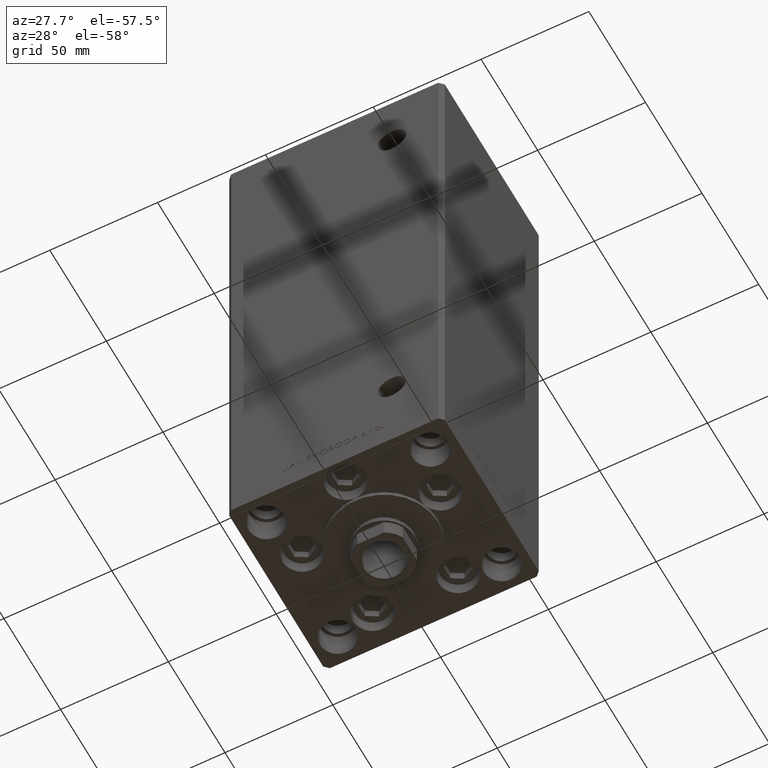
[diagram: clean part render]
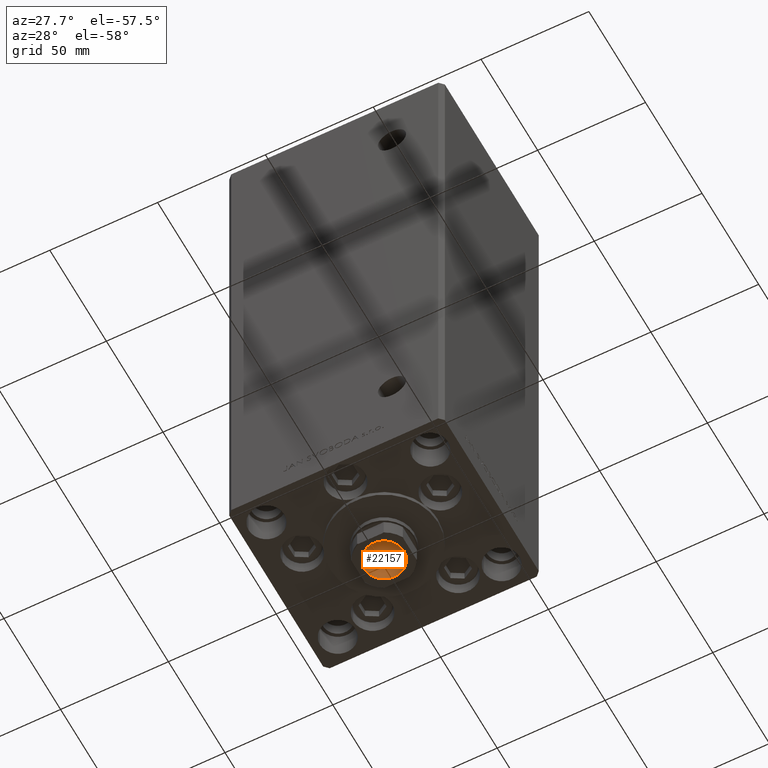
[diagram: same view with one face highlighted and labeled with its STEP entity id]
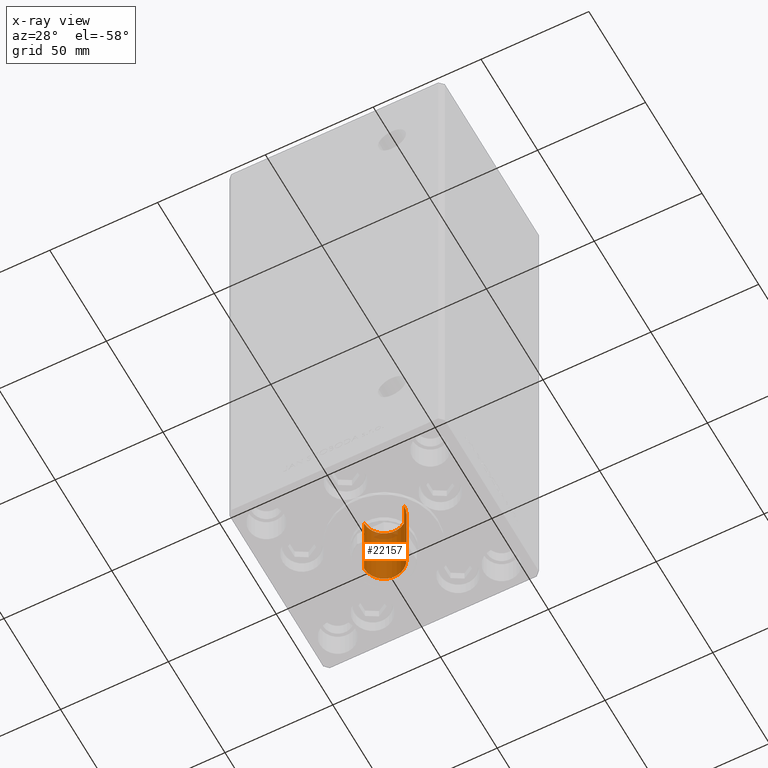
[diagram: x-ray of the same camera — body ghosted, the highlighted face saturated]
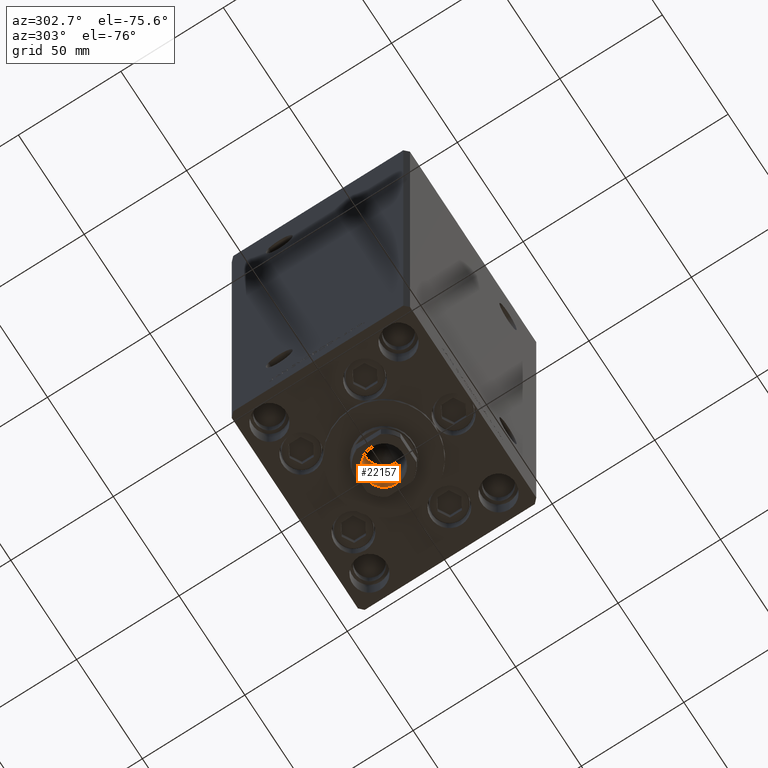
[diagram: same view with one face highlighted and labeled with its STEP entity id]
A machine part, auxiliary view. The second image highlights one B-rep face of the part: STEP entity #22157.
The next image is the same camera in x-ray: the body ghosted, the highlighted face saturated — about 7% of this face is hidden behind the body in this view.
A second angle (auxiliary view) of the same face is appended — the face is thin or edge-on in the first view.
In plain terms, the highlighted cylindrical surface (edge-blend (fillet) strip) has radius 9.25 mm, axis along (0, 0, -1).
Its self-contained STEP definition (entity closure, byte-faithful):
#507 = FACE_OUTER_BOUND ( 'NONE', #8332, .T. ) ;
#759 = CARTESIAN_POINT ( 'NONE',  ( 0.000000000000000000, 0.000000000000000000, 235.2500000000000284 ) ) ;
#4659 = CIRCLE ( 'NONE', #41884, 9.249999999999996447 ) ;
#5447 = ORIENTED_EDGE ( 'NONE', *, *, #41340, .F. ) ;
#5688 = VECTOR ( 'NONE', #36143, 1000.000000000000000 ) ;
#6352 = LINE ( 'NONE', #6595, #36897 ) ;
#6595 = CARTESIAN_POINT ( 'NONE',  ( -9.249999999999996447, 1.132798289211301304E-15, 235.2500000000000284 ) ) ;
#7647 = CARTESIAN_POINT ( 'NONE',  ( 0.000000000000000000, 0.000000000000000000, 200.2500000000000000 ) ) ;
#7963 = AXIS2_PLACEMENT_3D ( 'NONE', #759, #47102, #31643 ) ;
#8332 = EDGE_LOOP ( 'NONE', ( #5447, #12845, #41194, #23429 ) ) ;
#9037 = CARTESIAN_POINT ( 'NONE',  ( 9.249999999999996447, 0.000000000000000000, 235.2500000000000284 ) ) ;
#12845 = ORIENTED_EDGE ( 'NONE', *, *, #44065, .F. ) ;
#15496 = DIRECTION ( 'NONE',  ( -0.000000000000000000, -0.000000000000000000, 1.000000000000000000 ) ) ;
#17388 = LINE ( 'NONE', #9037, #5688 ) ;
#17585 = CARTESIAN_POINT ( 'NONE',  ( 0.000000000000000000, 0.000000000000000000, 234.9499999999999886 ) ) ;
#17586 = AXIS2_PLACEMENT_3D ( 'NONE', #7647, #15496, #23823 ) ;
#18369 = CIRCLE ( 'NONE', #17586, 9.249999999999994671 ) ;
#20748 = CARTESIAN_POINT ( 'NONE',  ( 9.249999999999996447, 0.000000000000000000, 234.9499999999999886 ) ) ;
#20933 = EDGE_CURVE ( 'NONE', #36758, #32395, #4659, .T. ) ;
#22157 = ADVANCED_FACE ( 'NONE', ( #507 ), #39008, .F. ) ;
#23429 = ORIENTED_EDGE ( 'NONE', *, *, #20933, .T. ) ;
#23823 = DIRECTION ( 'NONE',  ( 1.000000000000000000, 0.000000000000000000, 0.000000000000000000 ) ) ;
#26079 = EDGE_CURVE ( 'NONE', #35928, #36758, #17388, .T. ) ;
#29467 = DIRECTION ( 'NONE',  ( 0.000000000000000000, 0.000000000000000000, 1.000000000000000000 ) ) ;
#29672 = CARTESIAN_POINT ( 'NONE',  ( 9.249999999999994671, 0.000000000000000000, 200.2500000000000000 ) ) ;
#29716 = DIRECTION ( 'NONE',  ( 1.000000000000000000, 0.000000000000000000, 0.000000000000000000 ) ) ;
#31643 = DIRECTION ( 'NONE',  ( 1.000000000000000000, 0.000000000000000000, 0.000000000000000000 ) ) ;
#32395 = VERTEX_POINT ( 'NONE', #37493 ) ;
#33196 = DIRECTION ( 'NONE',  ( -0.000000000000000000, -0.000000000000000000, 1.000000000000000000 ) ) ;
#35928 = VERTEX_POINT ( 'NONE', #29672 ) ;
#36143 = DIRECTION ( 'NONE',  ( -0.000000000000000000, -0.000000000000000000, 1.000000000000000000 ) ) ;
#36758 = VERTEX_POINT ( 'NONE', #20748 ) ;
#36897 = VECTOR ( 'NONE', #33196, 1000.000000000000000 ) ;
#37074 = CARTESIAN_POINT ( 'NONE',  ( -9.249999999999994671, 1.132798289211300909E-15, 200.2500000000000000 ) ) ;
#37493 = CARTESIAN_POINT ( 'NONE',  ( -9.249999999999996447, 1.132798289211301304E-15, 234.9499999999999886 ) ) ;
#39008 = CYLINDRICAL_SURFACE ( 'NONE', #7963, 9.249999999999996447 ) ;
#41194 = ORIENTED_EDGE ( 'NONE', *, *, #26079, .T. ) ;
#41340 = EDGE_CURVE ( 'NONE', #44008, #32395, #6352, .T. ) ;
#41884 = AXIS2_PLACEMENT_3D ( 'NONE', #17585, #29467, #29716 ) ;
#44008 = VERTEX_POINT ( 'NONE', #37074 ) ;
#44065 = EDGE_CURVE ( 'NONE', #35928, #44008, #18369, .T. ) ;
#47102 = DIRECTION ( 'NONE',  ( -0.000000000000000000, -0.000000000000000000, 1.000000000000000000 ) ) ;